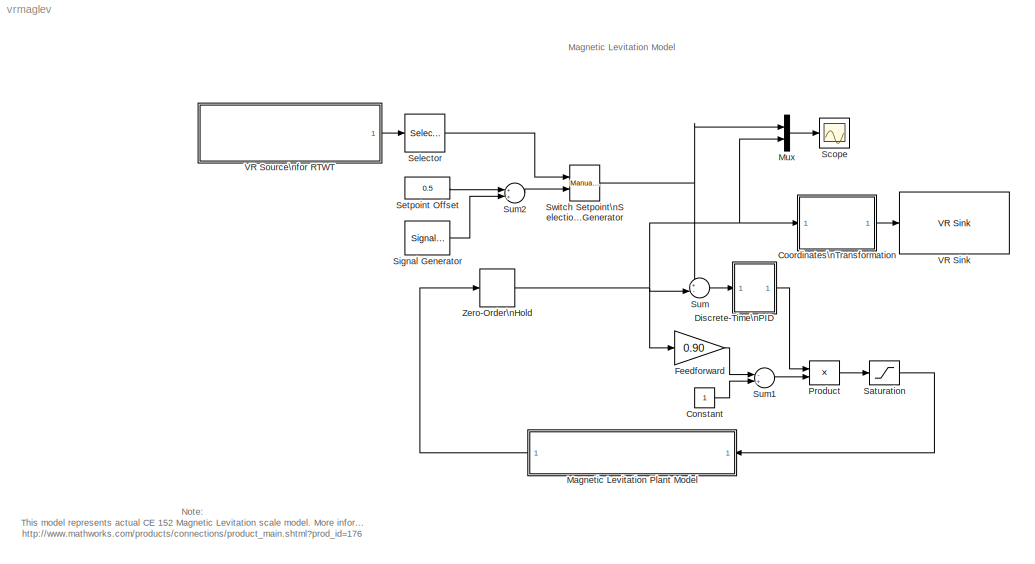
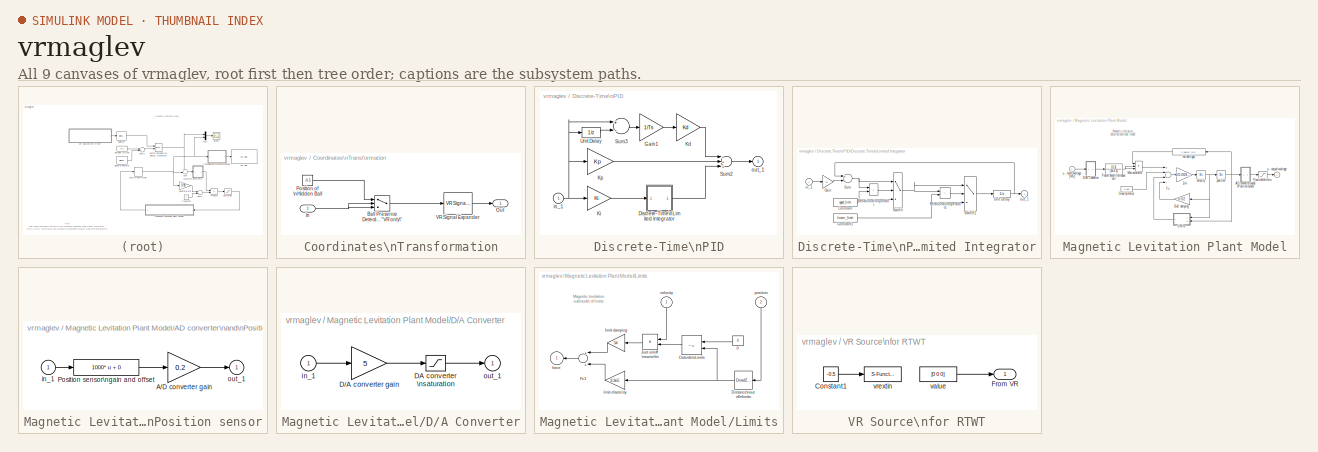
[diagram: thumbnail index - all 9 canvases of the model, root first then tree order]
MODEL vrmaglev
KIND model
CONFIG PreLoadFcn = Ts=1e-3;
BLOCK [Constant] Constant
BLOCK [SubSystem] Coordinates\nTransformation
  EnableExecutionContextPropagation = on
  MinAlgLoopOccurrences = off
  Ports = [1, 1]
  TreatAsAtomicUnit = off
BLOCK [Switch] Coordinates\nTransformation/Ball Presence Detection\nValue > Threshold = Ball Not Present\n1 for \"VR only\"
  SaturateOnIntegerOverflow = off
  Threshold = 1
BLOCK [Inport] Coordinates\nTransformation/In
  IconDisplay = Port number
  LatchInput = off
BLOCK [Outport] Coordinates\nTransformation/Out
  IconDisplay = Port number
BLOCK [Constant] Coordinates\nTransformation/Position of \nHidden Ball
  Value = -0.5
BLOCK [Reference] Coordinates\nTransformation/VR Signal Expander  REF=vrlib/VR Signal Expander
  Ports = [1, 1]
  SourceBlock = vrlib/VR Signal Expander
  SourceType = VR Signal Expander
  outidx = [2]
  outwidth = 3
BLOCK [SubSystem] Discrete-Time\nPID
  EnableExecutionContextPropagation = on
  MaskCallbackString = |||
  MaskDescription = Discrete-time PID controller with limited integrator
  MaskDisplay = disp('PID');
  MaskEnableString = on,on,on,on
  MaskIconFrame = on
  MaskIconOpaque = on
  MaskIconRotate = none
  MaskIconUnits = autoscale
  MaskPromptString = Kp:|Ki:|Kd:|Sample time:
  MaskStyleString = edit,edit,edit,edit
  MaskTabNameString = ,,,
  MaskToolTipString = on,on,on,on
  MaskTunableValueString = on,on,on,on
  MaskType = PID
  MaskValueString = 1|10|0.03|Ts
  MaskVarAliasString = ,,,
  MaskVariables = Kp=@1;Ki=@2;Kd=@3;Ts=@4;
  MaskVisibilityString = on,on,on,on
  MinAlgLoopOccurrences = off
  Ports = [1, 1]
  TreatAsAtomicUnit = off
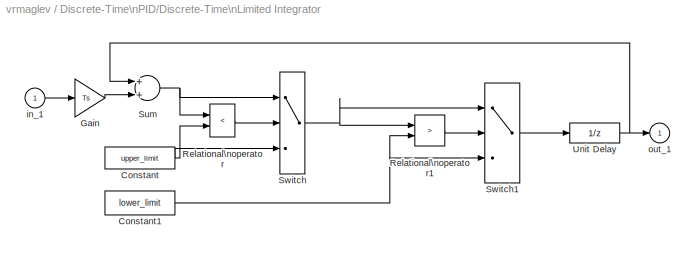
BLOCK [SubSystem] Discrete-Time\nPID/Discrete-Time\nLimited Integrator
  EnableExecutionContextPropagation = on
  MaskCallbackString = |||
  MaskDescription = Discrete-Time Limited Integrator.
  MaskDisplay = plot(-1,-0.2,3.5,1.2,[0,1,2,2.9],[0,0,1,1],[0,1],[0.5,0.5], [.5,.5], [.8,.6], [.05,.35,.05,.35],[.4,.4,.2,.2], [.45,.65],[.3,.3], [.9,.9],[.2,.4]);
  MaskEnableString = on,on,on,on
  MaskHelp = Discrete-Time Limited Integrator. Unmask to see details.
  MaskIconFrame = on
  MaskIconOpaque = on
  MaskIconRotate = none
  MaskIconUnits = autoscale
  MaskInitialization = lower_limit=@1;upper_limit=@2;X0=@3;Ts=@4;
  MaskPromptString = Lower bound:|Upper bound:|Initial condition:|Sampling Time:
  MaskStyleString = edit,edit,edit,edit
  MaskTabNameString = ,,,
  MaskToolTipString = on,on,on,on
  MaskTunableValueString = on,on,on,on
  MaskType = Discrete-Time Limited Integrator.
  MaskValueString = 0|2|0|Ts
  MaskVarAliasString = ,,,
  MaskVisibilityString = on,on,on,on
  MinAlgLoopOccurrences = off
  Ports = [1, 1]
  ShowPortLabels = off
  TreatAsAtomicUnit = off
BLOCK [Constant] Discrete-Time\nPID/Discrete-Time\nLimited Integrator/Constant
  Value = upper_limit
BLOCK [Constant] Discrete-Time\nPID/Discrete-Time\nLimited Integrator/Constant1
  Value = lower_limit
BLOCK [Gain] Discrete-Time\nPID/Discrete-Time\nLimited Integrator/Gain
  Gain = Ts
BLOCK [RelationalOperator] Discrete-Time\nPID/Discrete-Time\nLimited Integrator/Relational\noperator
  Operator = <
BLOCK [RelationalOperator] Discrete-Time\nPID/Discrete-Time\nLimited Integrator/Relational\noperator1
  Operator = >
BLOCK [Sum] Discrete-Time\nPID/Discrete-Time\nLimited Integrator/Sum
  Ports = [2, 1]
BLOCK [Switch] Discrete-Time\nPID/Discrete-Time\nLimited Integrator/Switch
  SaturateOnIntegerOverflow = off
  Threshold = 0.5
BLOCK [Switch] Discrete-Time\nPID/Discrete-Time\nLimited Integrator/Switch1
  SaturateOnIntegerOverflow = off
  Threshold = 0.5
BLOCK [UnitDelay] Discrete-Time\nPID/Discrete-Time\nLimited Integrator/Unit Delay
  SampleTime = Ts
  X0 = X0
BLOCK [Inport] Discrete-Time\nPID/Discrete-Time\nLimited Integrator/in_1
  IconDisplay = Port number
  LatchInput = off
BLOCK [Outport] Discrete-Time\nPID/Discrete-Time\nLimited Integrator/out_1
  IconDisplay = Port number
  InitialOutput = 0
BLOCK [Gain] Discrete-Time\nPID/Gain1
  Gain = 1/Ts
BLOCK [Gain] Discrete-Time\nPID/Kd
  Gain = Kd
BLOCK [Gain] Discrete-Time\nPID/Ki
  Gain = Ki
BLOCK [Gain] Discrete-Time\nPID/Kp
  Gain = Kp
BLOCK [Sum] Discrete-Time\nPID/Sum2
  Inputs = +++
  Ports = [3, 1]
BLOCK [Sum] Discrete-Time\nPID/Sum3
  Inputs = +-
  Ports = [2, 1]
BLOCK [UnitDelay] Discrete-Time\nPID/Unit Delay
  SampleTime = Ts
BLOCK [Inport] Discrete-Time\nPID/in_1
  IconDisplay = Port number
  LatchInput = off
BLOCK [Outport] Discrete-Time\nPID/out_1
  IconDisplay = Port number
  InitialOutput = 0
BLOCK [Gain] Feedforward
  Gain = 0.90
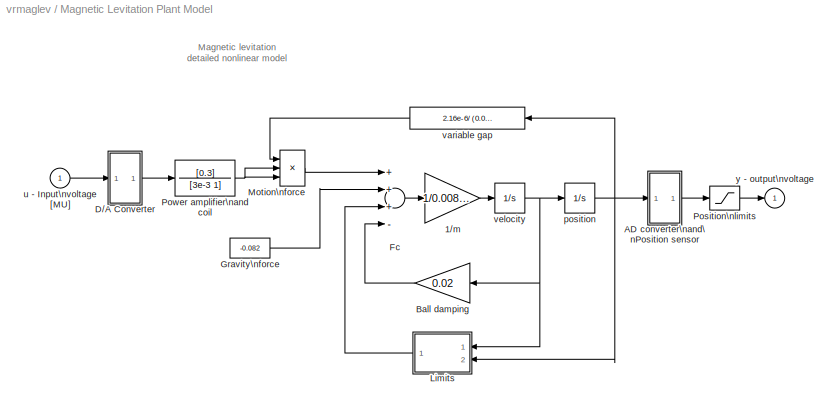
BLOCK [SubSystem] Magnetic Levitation Plant Model
  EnableExecutionContextPropagation = on
  MinAlgLoopOccurrences = off
  Ports = [1, 1]
  TreatAsAtomicUnit = off
BLOCK [Gain] Magnetic Levitation Plant Model/1//m
  Gain = 1/0.00837
BLOCK [SubSystem] Magnetic Levitation Plant Model/AD converter\nand\nPosition sensor
  EnableExecutionContextPropagation = on
  MaskDisplay = disp('A/D')
  MaskIconFrame = on
  MaskIconOpaque = on
  MaskIconRotate = none
  MaskIconUnits = autoscale
  MinAlgLoopOccurrences = off
  Ports = [1, 1]
  ShowPortLabels = off
  TreatAsAtomicUnit = off
BLOCK [Gain] Magnetic Levitation Plant Model/AD converter\nand\nPosition sensor/A//D converter gain
  Gain = 0.2
BLOCK [Fcn] Magnetic Levitation Plant Model/AD converter\nand\nPosition sensor/Position sensor\ngain and offset
  Expr = 1000* u + 0
BLOCK [Inport] Magnetic Levitation Plant Model/AD converter\nand\nPosition sensor/in_1
  IconDisplay = Port number
  LatchInput = off
BLOCK [Outport] Magnetic Levitation Plant Model/AD converter\nand\nPosition sensor/out_1
  IconDisplay = Port number
BLOCK [Gain] Magnetic Levitation Plant Model/Ball damping
  Gain = 0.02
BLOCK [SubSystem] Magnetic Levitation Plant Model/D//A Converter
  EnableExecutionContextPropagation = on
  MaskDisplay = disp('D/A')
  MaskIconFrame = on
  MaskIconOpaque = on
  MaskIconRotate = none
  MaskIconUnits = autoscale
  MinAlgLoopOccurrences = off
  Ports = [1, 1]
  ShowPortLabels = off
  TreatAsAtomicUnit = off
BLOCK [Gain] Magnetic Levitation Plant Model/D//A Converter/D//A converter gain
  Gain = 5
BLOCK [Saturate] Magnetic Levitation Plant Model/D//A Converter/DA converter \nsaturation
  LowerLimit = -5
  UpperLimit = 5
  ZeroCross = off
BLOCK [Inport] Magnetic Levitation Plant Model/D//A Converter/in_1
  IconDisplay = Port number
  LatchInput = off
BLOCK [Outport] Magnetic Levitation Plant Model/D//A Converter/out_1
  IconDisplay = Port number
BLOCK [Sum] Magnetic Levitation Plant Model/Fc
  Inputs = +++-
  Ports = [4, 1]
BLOCK [Constant] Magnetic Levitation Plant Model/Gravity\nforce
  Value = -0.082
BLOCK [SubSystem] Magnetic Levitation Plant Model/Limits
  EnableExecutionContextPropagation = on
  MaskDisplay = disp('LIMIT')
  MaskIconFrame = on
  MaskIconOpaque = on
  MaskIconRotate = none
  MaskIconUnits = autoscale
  MinAlgLoopOccurrences = off
  Ports = [2, 1]
  ShowPortLabels = off
  TreatAsAtomicUnit = off
BLOCK [Constant] Magnetic Levitation Plant Model/Limits/0
  Value = 0
BLOCK [DeadZone] Magnetic Levitation Plant Model/Limits/Distance\nout of\nlimits
  LowerValue = 0
  UpperValue = 0.005
  ZeroCross = off
BLOCK [Sum] Magnetic Levitation Plant Model/Limits/Fc1
  Ports = [2, 1]
BLOCK [Product] Magnetic Levitation Plant Model/Limits/Just on//off \nswitch\n
  Ports = [2, 1]
  RndMeth = Floor
BLOCK [RelationalOperator] Magnetic Levitation Plant Model/Limits/Outside\nLimits
  Operator = ~=
BLOCK [Outport] Magnetic Levitation Plant Model/Limits/force
  IconDisplay = Port number
BLOCK [Gain] Magnetic Levitation Plant Model/Limits/limit damping
  Gain = 34
BLOCK [Gain] Magnetic Levitation Plant Model/Limits/limit elasticity
  Gain = 3.3e5
BLOCK [Inport] Magnetic Levitation Plant Model/Limits/position
  IconDisplay = Port number
  LatchInput = off
  Port = 2
BLOCK [Inport] Magnetic Levitation Plant Model/Limits/velocity
  IconDisplay = Port number
  LatchInput = off
BLOCK [Product] Magnetic Levitation Plant Model/Motion\nforce
  Inputs = 3
  Ports = [3, 1]
  RndMeth = Floor
BLOCK [Saturate] Magnetic Levitation Plant Model/Position\nlimits
  LowerLimit = 0
  UpperLimit = 0.998
  ZeroCross = off
BLOCK [TransferFcn] Magnetic Levitation Plant Model/Power amplifier\nand coil
  Denominator = [3e-3 1]
  Numerator = [0.3]
BLOCK [Integrator] Magnetic Levitation Plant Model/position
  LimitOutput = on
  LowerSaturationLimit = 0
  Ports = [1, 1]
  UpperSaturationLimit = 0.005
  ZeroCross = off
BLOCK [Inport] Magnetic Levitation Plant Model/u - Input\nvoltage [MU]
  IconDisplay = Port number
  LatchInput = off
BLOCK [Fcn] Magnetic Levitation Plant Model/variable gap
  Expr = 2.16e-6/ (0.006 - u)^2
BLOCK [Integrator] Magnetic Levitation Plant Model/velocity
  LowerSaturationLimit = -Inf
  Ports = [1, 1]
  UpperSaturationLimit = Inf
  ZeroCross = off
BLOCK [Outport] Magnetic Levitation Plant Model/y - output\nvoltage
  IconDisplay = Port number
BLOCK [Mux] Mux
  DisplayOption = bar
  Inputs = 2
  Ports = [2, 1]
BLOCK [Product] Product
  Ports = [2, 1]
  RndMeth = Floor
BLOCK [Saturate] Saturation
  LowerLimit = 0
  UpperLimit = 1
  ZeroCross = off
BLOCK [Scope] Scope
  DataFormat = Structure
  ExtModeUploadOption = log
  MaxDataPoints = 250
  NumInputPorts = 1
  Ports = [1]
  SampleInput = on
  SampleTime = 0.02
  TimeRange = 5
  YMax = 1.027
  YMin = -0.0227122
  ZoomMode = yonly
BLOCK [Selector] Selector
  Elements = [2]
  InputPortWidth = 3
  Ports = [1, 1]
BLOCK [Constant] Setpoint Offset
  Value = 0.5
BLOCK [SignalGenerator] Signal Generator
  Amplitude = 0.2
  Frequency = 5.0
  Ports = [0, 1]
  Units = rad/sec
  WaveForm = square
BLOCK [Sum] Sum
  IconShape = round
  Inputs = +-|
  Ports = [2, 1]
BLOCK [Sum] Sum1
  Inputs = -+
  Ports = [2, 1]
BLOCK [Sum] Sum2
  Ports = [2, 1]
BLOCK [Reference] Switch Setpoint\nSelection Method\nVirtual Reality // Generator  REF=simulink/Signal\nRouting/Manual Switch
  Ports = [2, 1]
  ShowPortLabels = on
  SourceBlock = simulink/Signal\nRouting/Manual Switch
  SourceType = Manual Switch
  action = 0
  sw = 0
BLOCK [Reference] VR Sink  REF=vrlib/VR Sink
  AutoView = on
  FieldsWritten = Ball.translation.3.1.double
  Ports = [1]
  RemoteChange = off
  RemoteView = off
  SampleTime = 0.1
  SourceBlock = vrlib/VR Sink
  SourceType = Virtual Reality Sink
  ViewEnable = on
  WorldFileName = maglev.wrl
BLOCK [SubSystem] VR Source\nfor RTWT
  EnableExecutionContextPropagation = on
  MaskCallbackString = ||
  MaskDisplay = image(imread('vrblockicon.png')); port_label('output', 1, vr_field);
  MaskEnableString = on,on,on
  MaskIconFrame = on
  MaskIconOpaque = off
  MaskIconRotate = none
  MaskIconUnits = autoscale
  MaskPromptString = Sample time:|VRML world name:|VRML Node.Field name:
  MaskStyleString = edit,edit,edit
  MaskTabNameString = ,,
  MaskToolTipString = on,on,on
  MaskTunableValueString = on,on,on
  MaskType = VR Source for RTWT
  MaskValueString = 0.2|'maglev.wrl'|'Grab_Sensor.translation_changed'
  MaskVarAliasString = ,,
  MaskVariables = Ts=@1;vr_world=@2;vr_field=@3;
  MaskVisibilityString = on,on,on
  MinAlgLoopOccurrences = off
  Ports = [0, 1]
  TreatAsAtomicUnit = off
BLOCK [Constant] VR Source\nfor RTWT/Constant1
  Value = -0.5
BLOCK [Outport] VR Source\nfor RTWT/From VR
  IconDisplay = Port number
BLOCK [Constant] VR Source\nfor RTWT/value
  Value = [0  0  0]
BLOCK [S-Function] VR Source\nfor RTWT/vrextin
  FunctionName = vrextin
  Parameters = Ts, 'maglev.wrl', 'Grab_Sensor.translation_changed'
  Ports = [1]
BLOCK [ZeroOrderHold] Zero-Order\nHold
  SampleTime = Ts
ANNOTATION (root): Magnetic Levitation Model
ANNOTATION (root): Note:\nThis model represents actual CE 152 Magnetic Levitation scale model. More information can be found at:\nhttp://www.mathworks.com/products/connections/product_main.shtml?prod_id=176
ANNOTATION Magnetic Levitation Plant Model: Magnetic levitation \ndetailed nonlinear model
ANNOTATION Magnetic Levitation Plant Model/Limits: Magnetic levitation \nsubmodel of limits
LINE Constant:1 -> Sum1:2
LINE Coordinates\nTransformation/Ball Presence Detection\nValue > Threshold = Ball Not Present\n1 for \"VR only\":1 -> Coordinates\nTransformation/VR Signal Expander:1
NET Coordinates\nTransformation/In:1 -> Coordinates\nTransformation/Ball Presence Detection\nValue > Threshold = Ball Not Present\n1 for \"VR only\":2, Coordinates\nTransformation/Ball Presence Detection\nValue > Threshold = Ball Not Present\n1 for \"VR only\":3
LINE Coordinates\nTransformation/Position of \nHidden Ball:1 -> Coordinates\nTransformation/Ball Presence Detection\nValue > Threshold = Ball Not Present\n1 for \"VR only\":1
LINE Coordinates\nTransformation/VR Signal Expander:1 -> Coordinates\nTransformation/Out:1
LINE Coordinates\nTransformation:1 -> VR Sink:1
NET Discrete-Time\nPID/Discrete-Time\nLimited Integrator/Constant1:1 -> Discrete-Time\nPID/Discrete-Time\nLimited Integrator/Relational\noperator1:2, Discrete-Time\nPID/Discrete-Time\nLimited Integrator/Switch1:3
NET Discrete-Time\nPID/Discrete-Time\nLimited Integrator/Constant:1 -> Discrete-Time\nPID/Discrete-Time\nLimited Integrator/Relational\noperator:2, Discrete-Time\nPID/Discrete-Time\nLimited Integrator/Switch:3
LINE Discrete-Time\nPID/Discrete-Time\nLimited Integrator/Gain:1 -> Discrete-Time\nPID/Discrete-Time\nLimited Integrator/Sum:2
LINE Discrete-Time\nPID/Discrete-Time\nLimited Integrator/Relational\noperator1:1 -> Discrete-Time\nPID/Discrete-Time\nLimited Integrator/Switch1:2
LINE Discrete-Time\nPID/Discrete-Time\nLimited Integrator/Relational\noperator:1 -> Discrete-Time\nPID/Discrete-Time\nLimited Integrator/Switch:2
NET Discrete-Time\nPID/Discrete-Time\nLimited Integrator/Sum:1 -> Discrete-Time\nPID/Discrete-Time\nLimited Integrator/Relational\noperator:1, Discrete-Time\nPID/Discrete-Time\nLimited Integrator/Switch:1
LINE Discrete-Time\nPID/Discrete-Time\nLimited Integrator/Switch1:1 -> Discrete-Time\nPID/Discrete-Time\nLimited Integrator/Unit Delay:1
NET Discrete-Time\nPID/Discrete-Time\nLimited Integrator/Switch:1 -> Discrete-Time\nPID/Discrete-Time\nLimited Integrator/Relational\noperator1:1, Discrete-Time\nPID/Discrete-Time\nLimited Integrator/Switch1:1
NET Discrete-Time\nPID/Discrete-Time\nLimited Integrator/Unit Delay:1 -> Discrete-Time\nPID/Discrete-Time\nLimited Integrator/Sum:1, Discrete-Time\nPID/Discrete-Time\nLimited Integrator/out_1:1
LINE Discrete-Time\nPID/Discrete-Time\nLimited Integrator/in_1:1 -> Discrete-Time\nPID/Discrete-Time\nLimited Integrator/Gain:1
LINE Discrete-Time\nPID/Discrete-Time\nLimited Integrator:1 -> Discrete-Time\nPID/Sum2:3
LINE Discrete-Time\nPID/Gain1:1 -> Discrete-Time\nPID/Kd:1
LINE Discrete-Time\nPID/Kd:1 -> Discrete-Time\nPID/Sum2:1
LINE Discrete-Time\nPID/Ki:1 -> Discrete-Time\nPID/Discrete-Time\nLimited Integrator:1
LINE Discrete-Time\nPID/Kp:1 -> Discrete-Time\nPID/Sum2:2
LINE Discrete-Time\nPID/Sum2:1 -> Discrete-Time\nPID/out_1:1
LINE Discrete-Time\nPID/Sum3:1 -> Discrete-Time\nPID/Gain1:1
LINE Discrete-Time\nPID/Unit Delay:1 -> Discrete-Time\nPID/Sum3:2
NET Discrete-Time\nPID/in_1:1 -> Discrete-Time\nPID/Ki:1, Discrete-Time\nPID/Kp:1, Discrete-Time\nPID/Sum3:1, Discrete-Time\nPID/Unit Delay:1
LINE Discrete-Time\nPID:1 -> Product:1
LINE Feedforward:1 -> Sum1:1
LINE Magnetic Levitation Plant Model/1//m:1 -> Magnetic Levitation Plant Model/velocity:1
LINE Magnetic Levitation Plant Model/AD converter\nand\nPosition sensor/A//D converter gain:1 -> Magnetic Levitation Plant Model/AD converter\nand\nPosition sensor/out_1:1
LINE Magnetic Levitation Plant Model/AD converter\nand\nPosition sensor/Position sensor\ngain and offset:1 -> Magnetic Levitation Plant Model/AD converter\nand\nPosition sensor/A//D converter gain:1
LINE Magnetic Levitation Plant Model/AD converter\nand\nPosition sensor/in_1:1 -> Magnetic Levitation Plant Model/AD converter\nand\nPosition sensor/Position sensor\ngain and offset:1
LINE Magnetic Levitation Plant Model/AD converter\nand\nPosition sensor:1 -> Magnetic Levitation Plant Model/Position\nlimits:1
LINE Magnetic Levitation Plant Model/Ball damping:1 -> Magnetic Levitation Plant Model/Fc:4
LINE Magnetic Levitation Plant Model/D//A Converter/D//A converter gain:1 -> Magnetic Levitation Plant Model/D//A Converter/DA converter \nsaturation:1
LINE Magnetic Levitation Plant Model/D//A Converter/DA converter \nsaturation:1 -> Magnetic Levitation Plant Model/D//A Converter/out_1:1
LINE Magnetic Levitation Plant Model/D//A Converter/in_1:1 -> Magnetic Levitation Plant Model/D//A Converter/D//A converter gain:1
LINE Magnetic Levitation Plant Model/D//A Converter:1 -> Magnetic Levitation Plant Model/Power amplifier\nand coil:1
LINE Magnetic Levitation Plant Model/Fc:1 -> Magnetic Levitation Plant Model/1//m:1
LINE Magnetic Levitation Plant Model/Gravity\nforce:1 -> Magnetic Levitation Plant Model/Fc:2
LINE Magnetic Levitation Plant Model/Limits/0:1 -> Magnetic Levitation Plant Model/Limits/Outside\nLimits:1
NET Magnetic Levitation Plant Model/Limits/Distance\nout of\nlimits:1 -> Magnetic Levitation Plant Model/Limits/Outside\nLimits:2, Magnetic Levitation Plant Model/Limits/limit elasticity:1
LINE Magnetic Levitation Plant Model/Limits/Fc1:1 -> Magnetic Levitation Plant Model/Limits/force:1
LINE Magnetic Levitation Plant Model/Limits/Just on//off \nswitch\n:1 -> Magnetic Levitation Plant Model/Limits/limit damping:1
LINE Magnetic Levitation Plant Model/Limits/Outside\nLimits:1 -> Magnetic Levitation Plant Model/Limits/Just on//off \nswitch\n:2
LINE Magnetic Levitation Plant Model/Limits/limit damping:1 -> Magnetic Levitation Plant Model/Limits/Fc1:1
LINE Magnetic Levitation Plant Model/Limits/limit elasticity:1 -> Magnetic Levitation Plant Model/Limits/Fc1:2
LINE Magnetic Levitation Plant Model/Limits/position:1 -> Magnetic Levitation Plant Model/Limits/Distance\nout of\nlimits:1
LINE Magnetic Levitation Plant Model/Limits/velocity:1 -> Magnetic Levitation Plant Model/Limits/Just on//off \nswitch\n:1
LINE Magnetic Levitation Plant Model/Limits:1 -> Magnetic Levitation Plant Model/Fc:3
LINE Magnetic Levitation Plant Model/Motion\nforce:1 -> Magnetic Levitation Plant Model/Fc:1
LINE Magnetic Levitation Plant Model/Position\nlimits:1 -> Magnetic Levitation Plant Model/y - output\nvoltage:1
NET Magnetic Levitation Plant Model/Power amplifier\nand coil:1 -> Magnetic Levitation Plant Model/Motion\nforce:2, Magnetic Levitation Plant Model/Motion\nforce:3
NET Magnetic Levitation Plant Model/position:1 -> Magnetic Levitation Plant Model/AD converter\nand\nPosition sensor:1, Magnetic Levitation Plant Model/Limits:2, Magnetic Levitation Plant Model/variable gap:1
LINE Magnetic Levitation Plant Model/u - Input\nvoltage [MU]:1 -> Magnetic Levitation Plant Model/D//A Converter:1
LINE Magnetic Levitation Plant Model/variable gap:1 -> Magnetic Levitation Plant Model/Motion\nforce:1
NET Magnetic Levitation Plant Model/velocity:1 -> Magnetic Levitation Plant Model/Ball damping:1, Magnetic Levitation Plant Model/Limits:1, Magnetic Levitation Plant Model/position:1
LINE Magnetic Levitation Plant Model:1 -> Zero-Order\nHold:1
LINE Mux:1 -> Scope:1
LINE Product:1 -> Saturation:1
LINE Saturation:1 -> Magnetic Levitation Plant Model:1
LINE Selector:1 -> Switch Setpoint\nSelection Method\nVirtual Reality // Generator:1
LINE Setpoint Offset:1 -> Sum2:1
LINE Signal Generator:1 -> Sum2:2
LINE Sum1:1 -> Product:2
LINE Sum2:1 -> Switch Setpoint\nSelection Method\nVirtual Reality // Generator:2
LINE Sum:1 -> Discrete-Time\nPID:1
NET Switch Setpoint\nSelection Method\nVirtual Reality // Generator:1 -> Mux:1, Sum:1
LINE VR Source\nfor RTWT/Constant1:1 -> VR Source\nfor RTWT/vrextin:1
LINE VR Source\nfor RTWT/value:1 -> VR Source\nfor RTWT/From VR:1
LINE VR Source\nfor RTWT:1 -> Selector:1
NET Zero-Order\nHold:1 -> Coordinates\nTransformation:1, Feedforward:1, Mux:2, Sum:2
note: NET lines group one-source signal fan-out (src -> all destinations, sorted); 1:1 wires keep LINE
